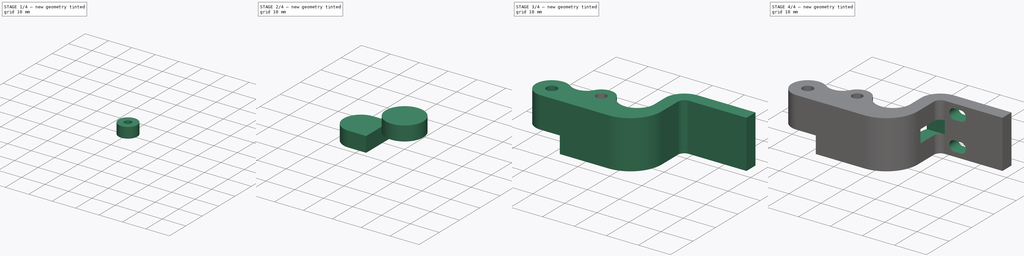
[diagram: build sequence overview — one tinted view per stage of 4, left to right]
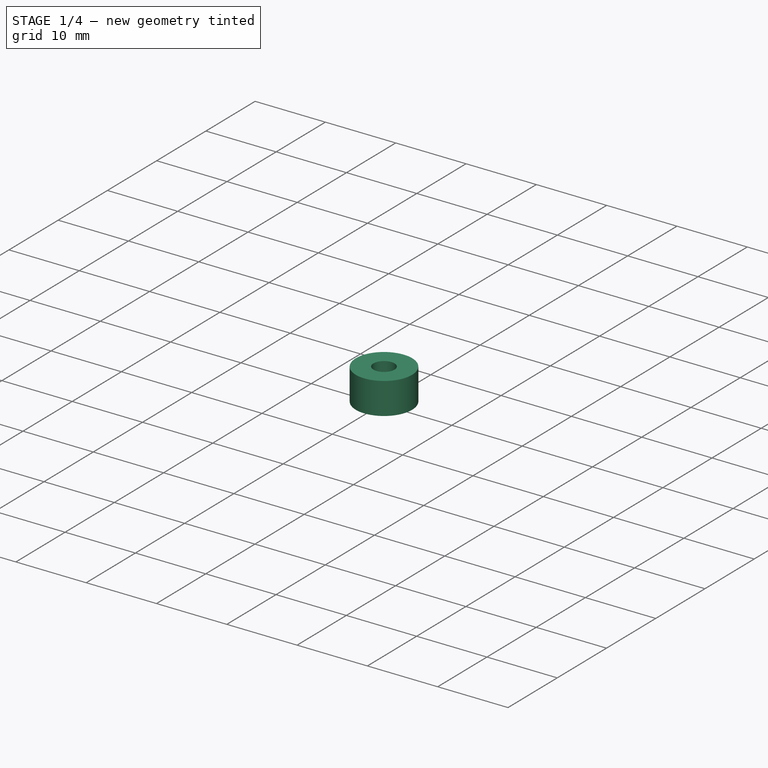
[diagram: stage 1 of 4 — iso view after this stage's code; geometry added in this stage tinted green]
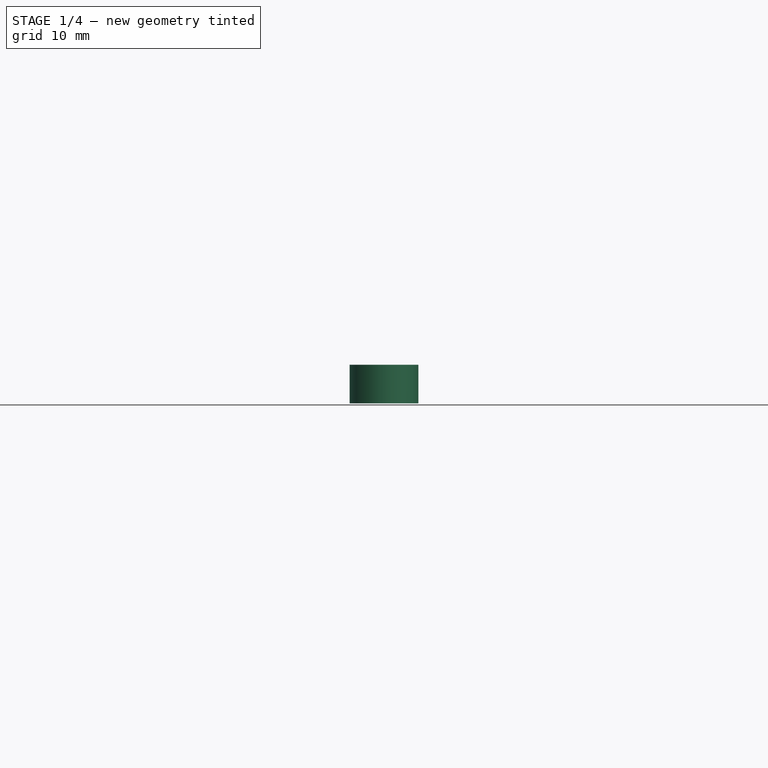
[diagram: stage 1 of 4 — front view after this stage's code; geometry added in this stage tinted green]
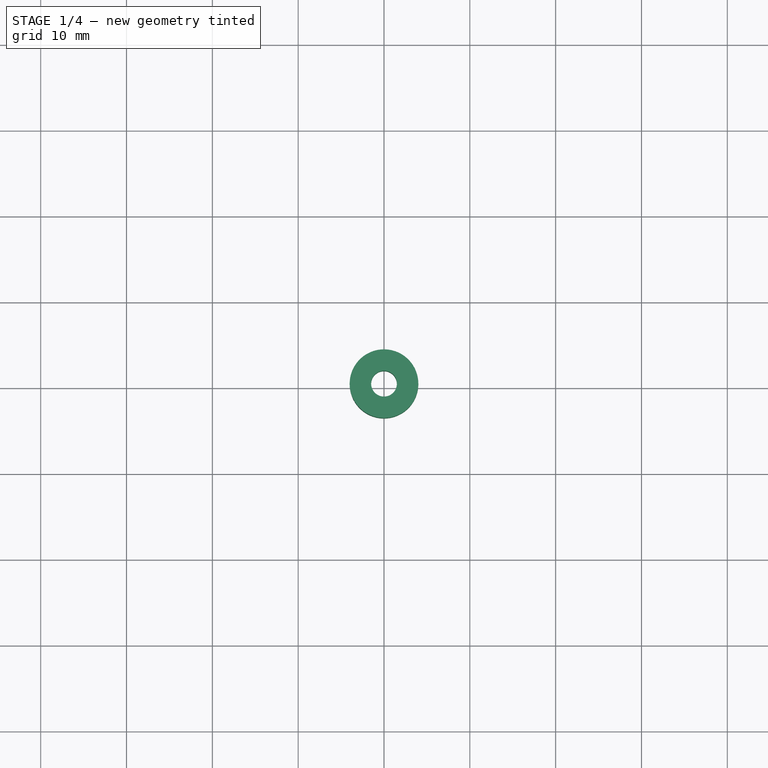
[diagram: stage 1 of 4 — top view after this stage's code; geometry added in this stage tinted green]
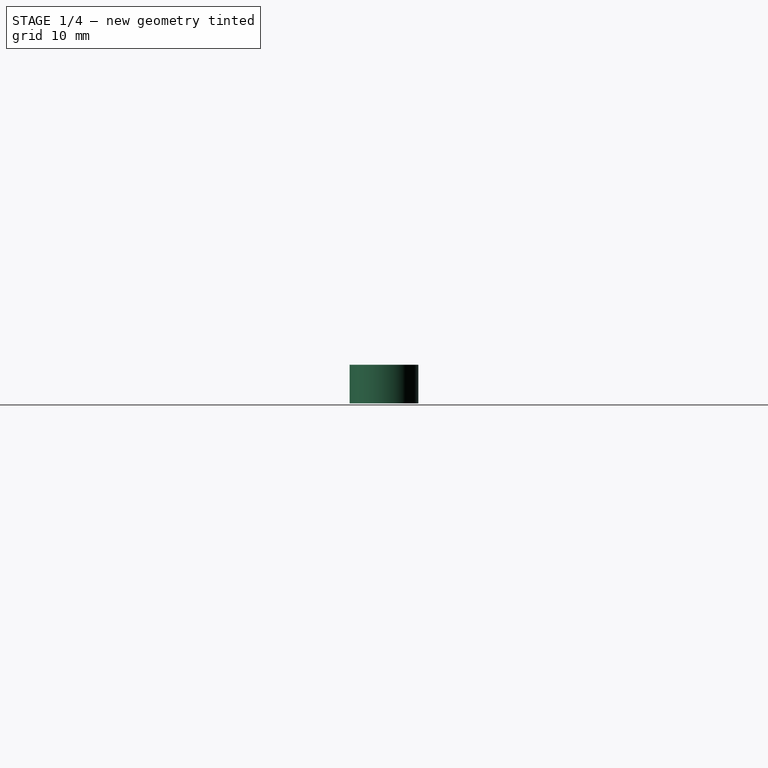
[diagram: stage 1 of 4 — right view after this stage's code; geometry added in this stage tinted green]
FCSTD DOCUMENT  (FreeCAD 0.16R6707 (Git))
Label: palancaV2
License: CreativeCommons Attribution-NonCommercial
LicenseURL: http://creativecommons.org/licenses/by-nc/4.0/
objects: Sketcher::SketchObject×4, Part::Cut×3, Part::Cylinder×3, PartDesign::Pad×2, PartDesign::Pocket×2, PartDesign::Chamfer×1
note: 19 computed .brp shape members not serialized (recipe doc carries the construction recipe); baked Part::Feature solids carry a one-line shape summary decoded from their .brp

FEATURE [Part::Cylinder] Cylinder001  label="Cilindro"
  Angle = 360
  Height = 4.5
  Placement = pos=(0,-9.5,5.25) rot=(0,0,1;0rad)
  Radius = 1.5
FEATURE [Part::Cylinder] Cylinder002  label="Cilindro001"
  Angle = 360
  Height = 4.5
  Placement = pos=(0,-9.5,5.25) rot=(0,0,1;0rad)
  Radius = 4
FEATURE [Part::Cut] Cut002
  Base = -> Cylinder002
  Tool = -> Cylinder001
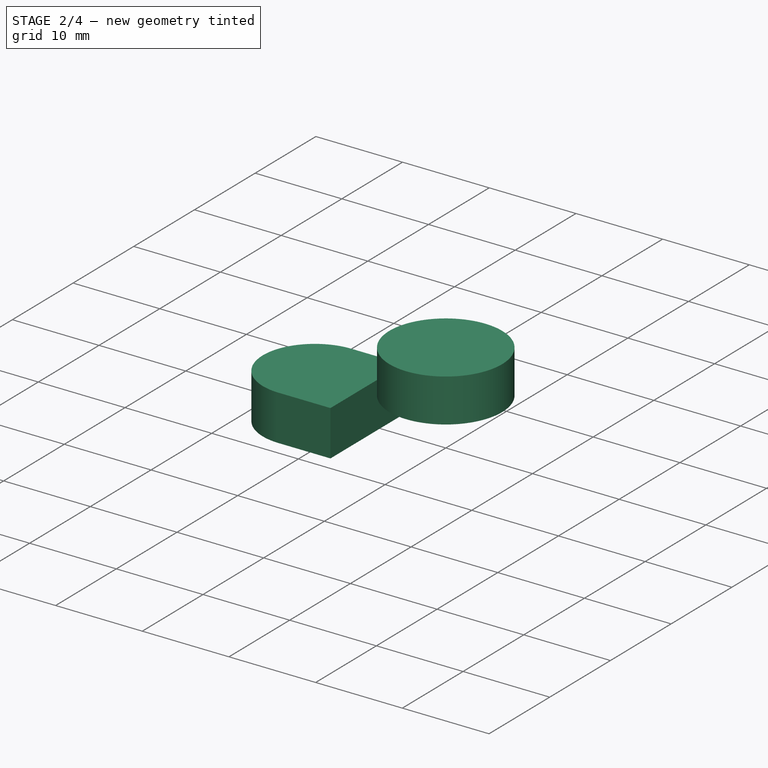
[diagram: stage 2 of 4 — iso view after this stage's code; geometry added in this stage tinted green]
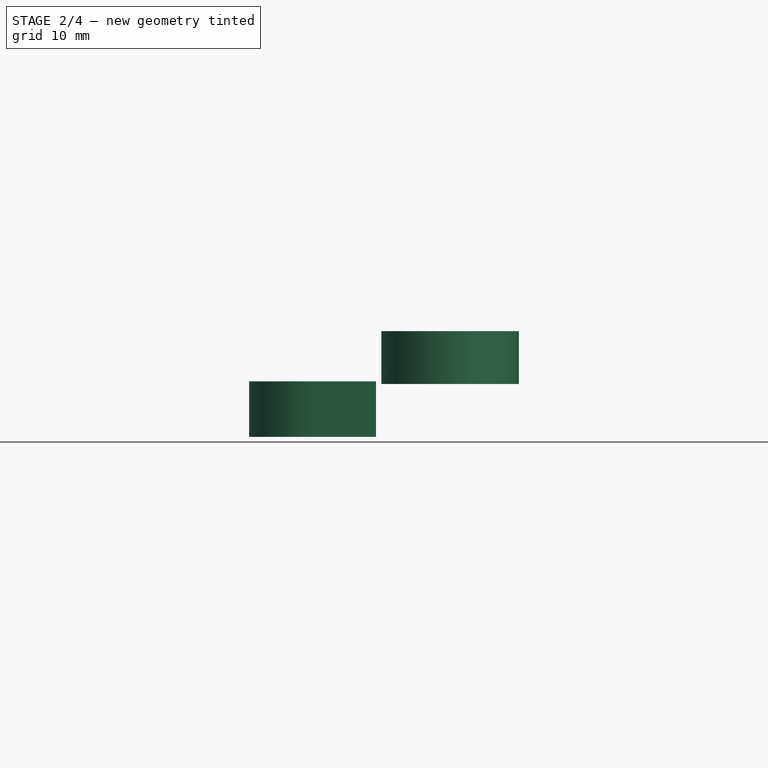
[diagram: stage 2 of 4 — front view after this stage's code; geometry added in this stage tinted green]
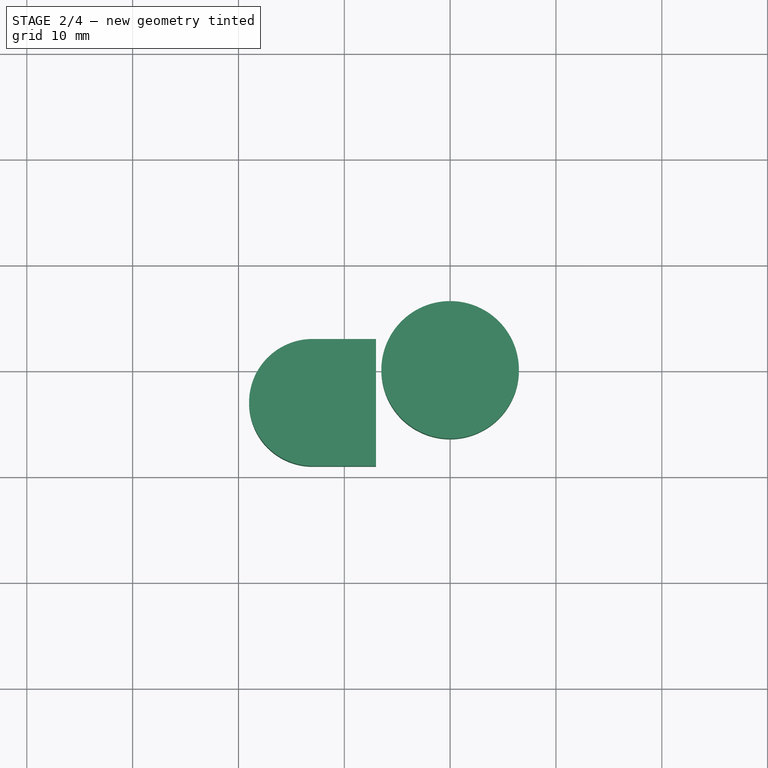
[diagram: stage 2 of 4 — top view after this stage's code; geometry added in this stage tinted green]
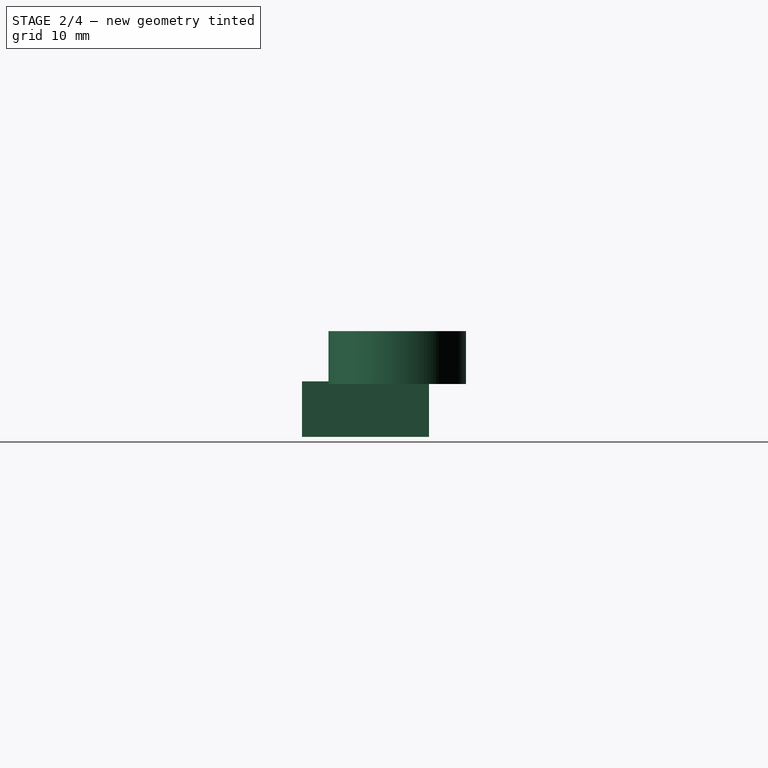
[diagram: stage 2 of 4 — right view after this stage's code; geometry added in this stage tinted green]
FEATURE [Sketcher::SketchObject] Sketch001
  sketch-geometry (4):
    g0: ArcOfCircle CenterX=-13 CenterY=-13 CenterZ=0 NormalX=0 NormalY=0 NormalZ=1 Radius=6 StartAngle=1.5708 EndAngle=4.71239
    g1: LineSegment StartX=-13 StartY=-7 StartZ=0 EndX=-7 EndY=-7 EndZ=0
    g2: LineSegment StartX=-7 StartY=-7 StartZ=0 EndX=-7 EndY=-19 EndZ=0
    g3: LineSegment StartX=-7 StartY=-19 StartZ=0 EndX=-13 EndY=-19 EndZ=0
  constraints (12):
    c: Tangent(g0,g1) = 1.5708
    c: Coincident(g1,g2)
    c: Coincident(g2,g3)
    c: Coincident(g3,g0)
    c: Tangent(g3,g0)
    c: Vertical(g2)
    c: Horizontal(g1)
    c: Horizontal(g3)
    c: Radius(g0) = 6
    c: DistanceX(g1) = 6
    c: DistanceX(g-1,g0) = -13
    c: DistanceY(g-1,g0) = -13
FEATURE [PartDesign::Pad] Pad001  label="bisagra"
  Length = 5.25
  Length2 = 100
  Sketch = -> Sketch001
  Type = 0
FEATURE [Part::Cylinder] Cylinder  label="rodamiento"
  Angle = 360
  Height = 5
  Placement = pos=(0,-10,5) rot=(0,0,1;0rad)
  Radius = 6.5
FEATURE [PartDesign::Chamfer] Chamfer
  Base = -> Cut002 [Edge1,Edge4]
  Size = 0.8
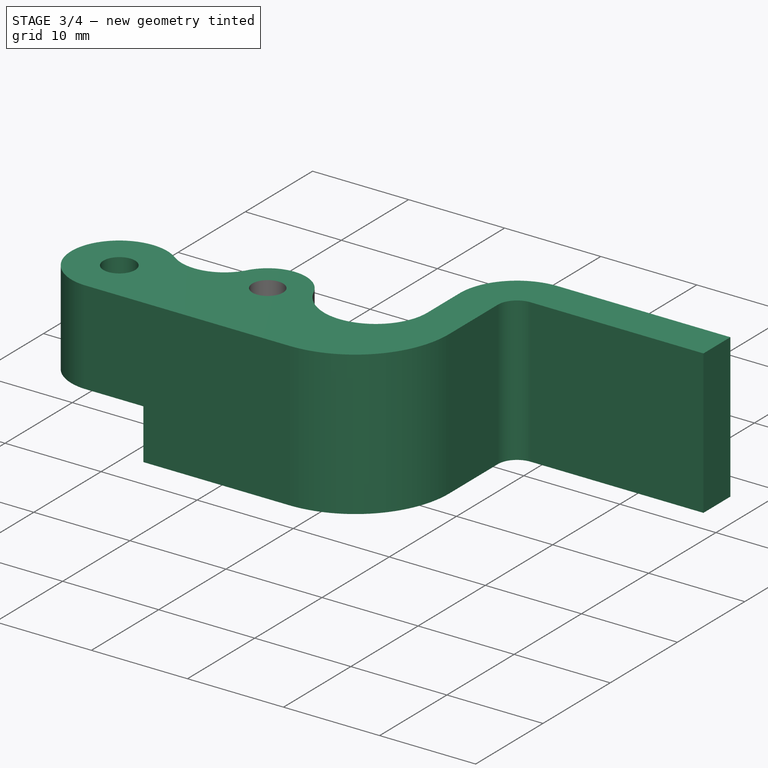
[diagram: stage 3 of 4 — iso view after this stage's code; geometry added in this stage tinted green]
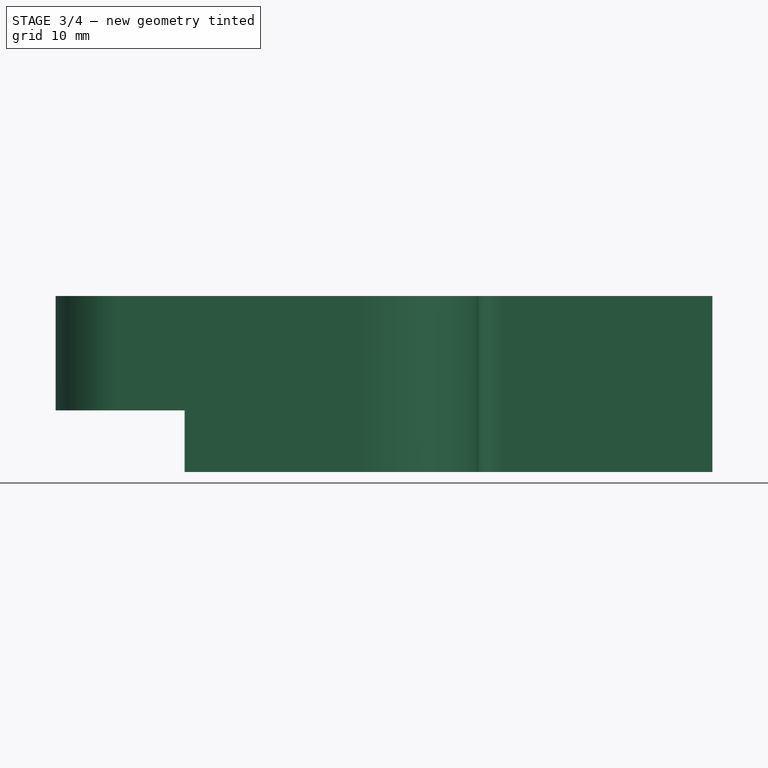
[diagram: stage 3 of 4 — front view after this stage's code; geometry added in this stage tinted green]
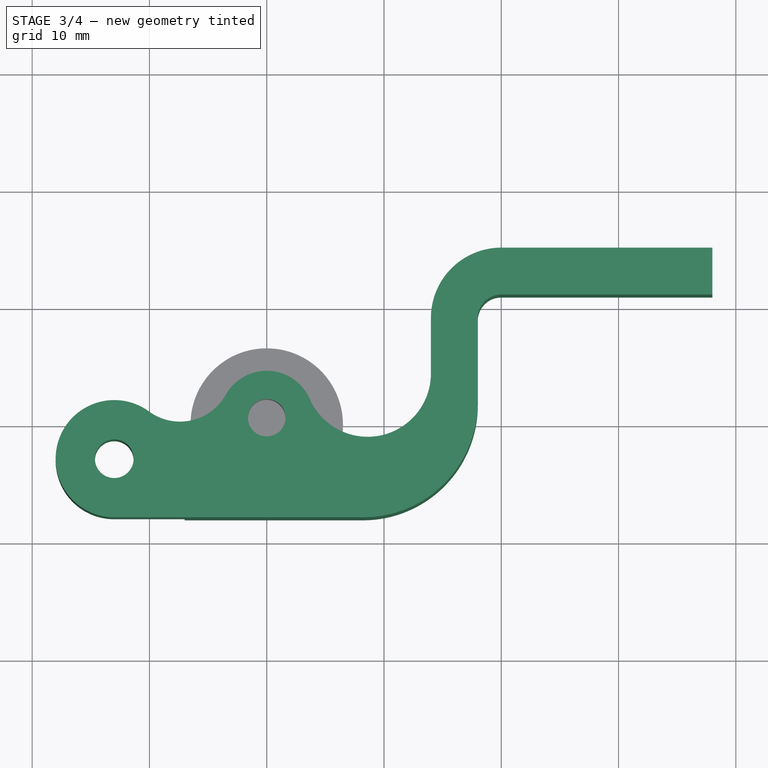
[diagram: stage 3 of 4 — top view after this stage's code; geometry added in this stage tinted green]
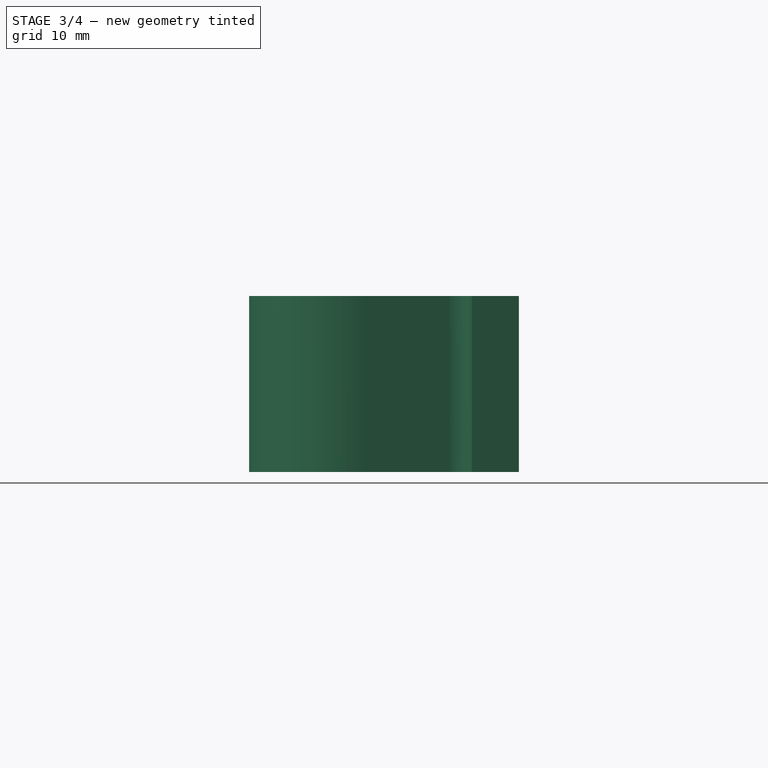
[diagram: stage 3 of 4 — right view after this stage's code; geometry added in this stage tinted green]
FEATURE [Sketcher::SketchObject] Sketch
  sketch-geometry (15):
    g0: Circle CenterX=0 CenterY=-9.5 CenterZ=0 NormalX=0 NormalY=0 NormalZ=1 Radius=1.6
    g1: Circle CenterX=-13 CenterY=-13 CenterZ=0 NormalX=0 NormalY=0 NormalZ=1 Radius=1.65
    g2: ArcOfCircle CenterX=-13 CenterY=-13 CenterZ=0 NormalX=0 NormalY=0 NormalZ=1 Radius=5 StartAngle=0.937369 EndAngle=4.71239
    g3: ArcOfCircle CenterX=0 CenterY=-9.5 CenterZ=0 NormalX=0 NormalY=0 NormalZ=1 Radius=4 StartAngle=0.412121 EndAngle=2.63182
    g4: LineSegment StartX=-13 StartY=-18 StartZ=0 EndX=8.20272 EndY=-18 EndZ=0
    g5: ArcOfCircle CenterX=-7.39399 CenterY=-5.36631 CenterZ=0 NormalX=0 NormalY=0 NormalZ=1 Radius=4.47104 StartAngle=4.07896 EndAngle=5.77341
    g6: ArcOfCircle CenterX=8.20272 CenterY=-8.20272 CenterZ=0 NormalX=0 NormalY=0 NormalZ=1 Radius=9.79728 StartAngle=4.71239 EndAngle=6.28319
    g7: LineSegment StartX=18 StartY=-8.20272 StartZ=0 EndX=18 EndY=-1 EndZ=0
    g8: LineSegment StartX=20 StartY=1 StartZ=0 EndX=38 EndY=1 EndZ=0
    g9: LineSegment StartX=38 StartY=1 StartZ=0 EndX=38 EndY=5 EndZ=0
    g10: LineSegment StartX=38 StartY=5 StartZ=0 EndX=20 EndY=5 EndZ=0
    g11: ArcOfCircle CenterX=20 CenterY=-1 CenterZ=0 NormalX=0 NormalY=0 NormalZ=1 Radius=2 StartAngle=1.5708 EndAngle=3.14159
    g12: ArcOfCircle CenterX=20 CenterY=-1 CenterZ=0 NormalX=0 NormalY=0 NormalZ=1 Radius=6 StartAngle=1.57079 EndAngle=3.14159
    g13: LineSegment StartX=14 StartY=-1 StartZ=0 EndX=14 EndY=-5.7375 EndZ=0
    g14: ArcOfCircle CenterX=8.60677 CenterY=-5.7375 CenterZ=0 NormalX=0 NormalY=0 NormalZ=1 Radius=5.39323 StartAngle=3.55372 EndAngle=6.28319
  constraints (44):
    c: PointOnObject(g0,g-2)
    c: DistanceX(g-1,g1) = -13
    c: DistanceY(g-1,g1) = -13
    c: Radius(g1) = 1.65
    c: Radius(g0) = 1.6
    c: Coincident(g2,g1)
    c: Coincident(g3,g0)
    c: Coincident(g4,g2)
    c: Horizontal(g4)
    c: Tangent(g2,g4)
    c: Radius(g2) = 5
    c: Radius(g3) = 4
    c: Coincident(g5,g2)
    c: Coincident(g5,g3)
    c: Tangent(g5,g3)
    c: Tangent(g5,g2)
    c: Coincident(g6,g4)
    c: Tangent(g6,g4)
    c: Coincident(g7,g6)
    c: Vertical(g7)
    c: Coincident(g8,g9)
    c: Coincident(g9,g10)
    c: Horizontal(g8)
    c: Horizontal(g10)
    c: Vertical(g9)
    c: Tangent(g7,g11) = 1.5708
    c: Tangent(g8,g11) = 1.5708
    c: Radius(g11) = 2
    c: DistanceY(g9) = 4
    c: Coincident(g12,g11)
    c: Coincident(g12,g10)
    c: Tangent(g10,g12)
    c: DistanceX(g-1,g9) = 38
    c: DistanceX(g8) = 18
    c: Coincident(g13,g12)
    c: Vertical(g13)
    c: Tangent(g13,g12)
    c: DistanceY(g-1,g10) = 5
    c: Coincident(g14,g13)
    c: Tangent(g14,g13)
    c: Coincident(g14,g3)
    c: Tangent(g14,g3)
    c: Tangent(g6,g7)
    c: DistanceY(g-1,g0) = -9.5
FEATURE [PartDesign::Pad] Pad  label="cuerpo"
  Length = 15
  Length2 = 100
  Sketch = -> Sketch
  Type = 0
FEATURE [Part::Cut] Cut
  Base = -> Pad
  Tool = -> Pad001
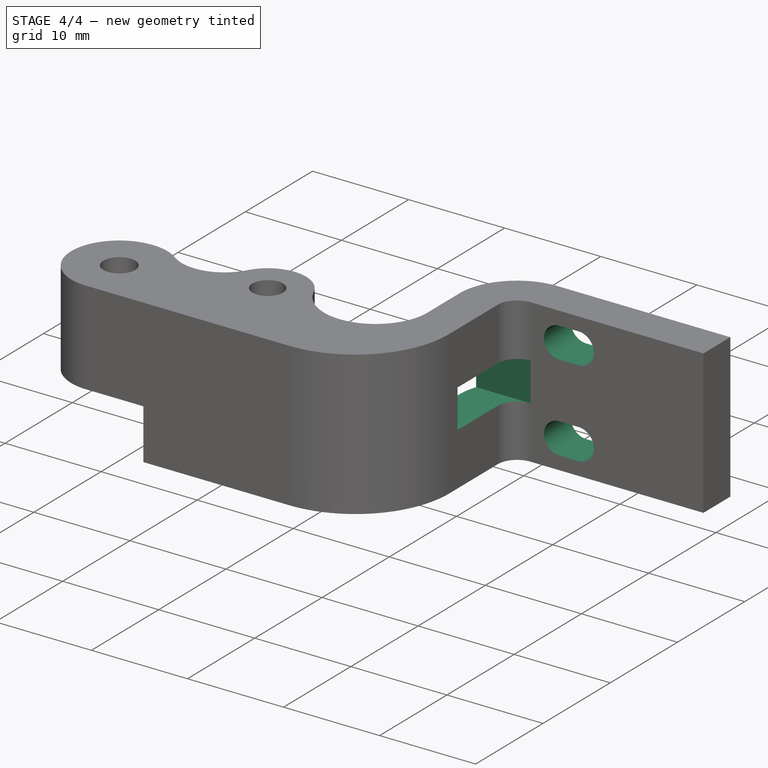
[diagram: stage 4 of 4 — iso view after this stage's code; geometry added in this stage tinted green]
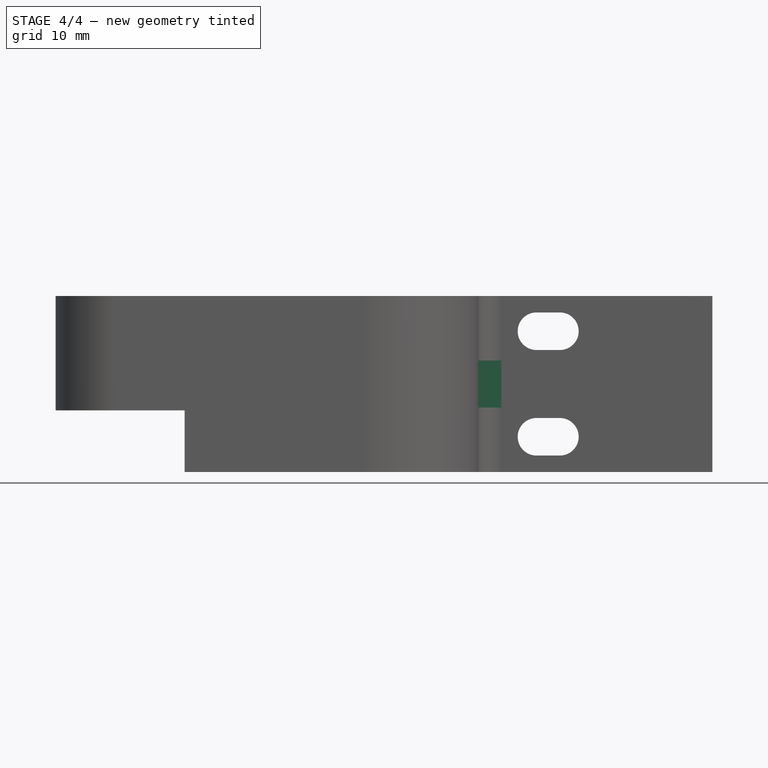
[diagram: stage 4 of 4 — front view after this stage's code; geometry added in this stage tinted green]
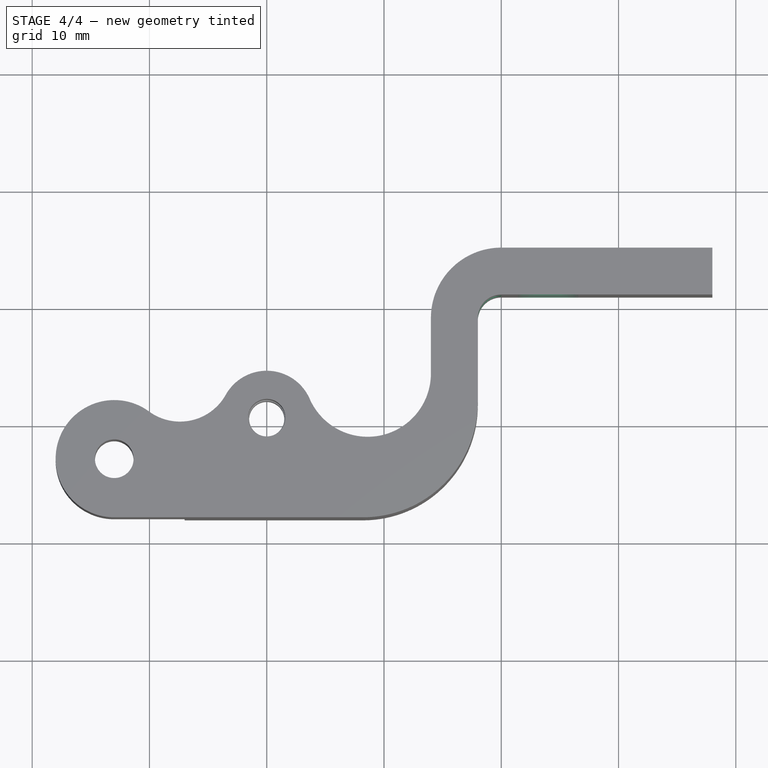
[diagram: stage 4 of 4 — top view after this stage's code; geometry added in this stage tinted green]
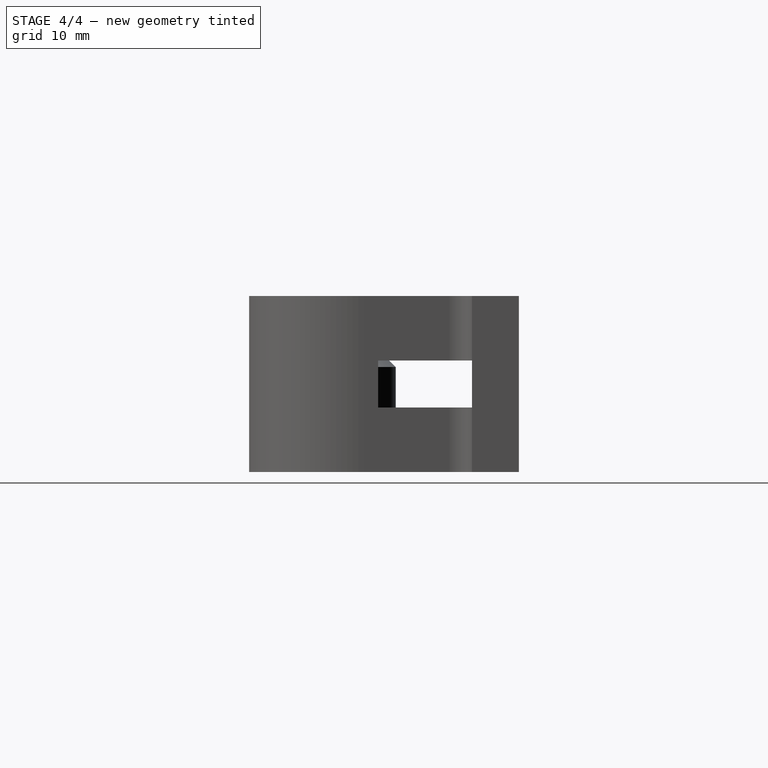
[diagram: stage 4 of 4 — right view after this stage's code; geometry added in this stage tinted green]
FEATURE [Part::Cut] Cut001
  Base = -> Cut
  Tool = -> Cylinder
FEATURE [Sketcher::SketchObject] Sketch002
  Placement = pos=(0,5,0) rot=(0,0.707107,0.707107;3.14159rad)
  Support = -> Cut001 [Face13]
  sketch-geometry (8):
    g0: ArcOfCircle CenterX=-25 CenterY=12 CenterZ=0 NormalX=0 NormalY=0 NormalZ=1 Radius=1.6 StartAngle=1.5708 EndAngle=4.71239
    g1: ArcOfCircle CenterX=-23 CenterY=12 CenterZ=0 NormalX=0 NormalY=0 NormalZ=1 Radius=1.6 StartAngle=4.71239 EndAngle=7.85398
    g2: LineSegment StartX=-25 StartY=10.4 StartZ=0 EndX=-23 EndY=10.4 EndZ=0
    g3: LineSegment StartX=-25 StartY=13.6 StartZ=0 EndX=-23 EndY=13.6 EndZ=0
    g4: ArcOfCircle CenterX=-25 CenterY=3 CenterZ=0 NormalX=0 NormalY=0 NormalZ=1 Radius=1.6 StartAngle=1.5708 EndAngle=4.71239
    g5: ArcOfCircle CenterX=-23 CenterY=3 CenterZ=0 NormalX=0 NormalY=0 NormalZ=1 Radius=1.6 StartAngle=4.71239 EndAngle=7.85398
    g6: LineSegment StartX=-25 StartY=1.4 StartZ=0 EndX=-23 EndY=1.4 EndZ=0
    g7: LineSegment StartX=-25 StartY=4.6 StartZ=0 EndX=-23 EndY=4.6 EndZ=0
  constraints (20):
    c: Tangent(g0,g3) = 1.5708
    c: Tangent(g0,g2) = -1.5708
    c: Tangent(g2,g1) = -1.5708
    c: Tangent(g3,g1) = 1.5708
    c: Horizontal(g2)
    c: Equal(g0,g1)
    c: Tangent(g4,g7) = 1.5708
    c: Tangent(g4,g6) = -1.5708
    c: Tangent(g6,g5) = -1.5708
    c: Tangent(g7,g5) = 1.5708
    c: Horizontal(g6)
    c: Equal(g4,g5)
    c: Equal(g7,g3)
    c: Equal(g4,g0)
    c: DistanceX(g3) = 2
    c: Radius(g0) = 1.6
    c: DistanceY(g4,g0) = 9
    c: DistanceY(g-1,g4) = 3
    c: DistanceX(g-1,g4) = -25
    c: DistanceX(g-1,g0) = -25
FEATURE [PartDesign::Pocket] Pocket
  Length = 5
  Sketch = -> Sketch002
  Type = 0
FEATURE [Sketcher::SketchObject] Sketch003
  Placement = pos=(18,0,0) rot=(0.57735,0.57735,0.57735;2.0944rad)
  Support = -> Pocket [Face9]
  sketch-geometry (4):
    g0: LineSegment StartX=-7 StartY=9.5 StartZ=0 EndX=1 EndY=9.5 EndZ=0
    g1: LineSegment StartX=1 StartY=9.5 StartZ=0 EndX=1 EndY=5.5 EndZ=0
    g2: LineSegment StartX=1 StartY=5.5 StartZ=0 EndX=-7 EndY=5.5 EndZ=0
    g3: LineSegment StartX=-7 StartY=5.5 StartZ=0 EndX=-7 EndY=9.5 EndZ=0
  constraints (12):
    c: Coincident(g0,g1)
    c: Coincident(g1,g2)
    c: Coincident(g2,g3)
    c: Coincident(g3,g0)
    c: Horizontal(g0)
    c: Horizontal(g2)
    c: Vertical(g1)
    c: Vertical(g3)
    c: DistanceY(g3) = 4
    c: DistanceY(g-1,g2) = 5.5
    c: DistanceX(g-1,g2) = -7
    c: DistanceX(g2) = -8
FEATURE [PartDesign::Pocket] Pocket001
  Length = 5
  Midplane = true
  Sketch = -> Sketch003
  Type = 1
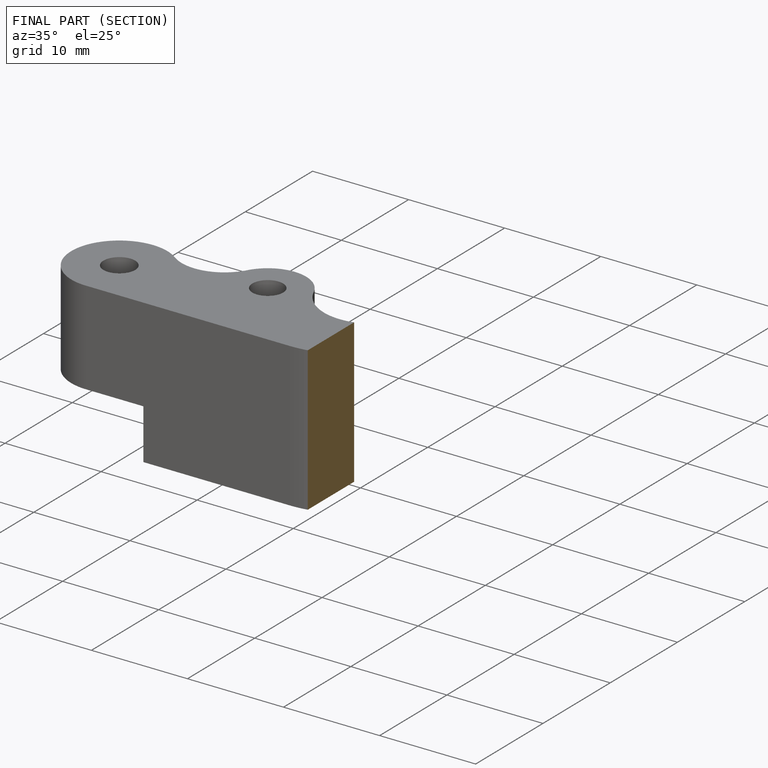
[diagram: finished part — half-section view (interior)]
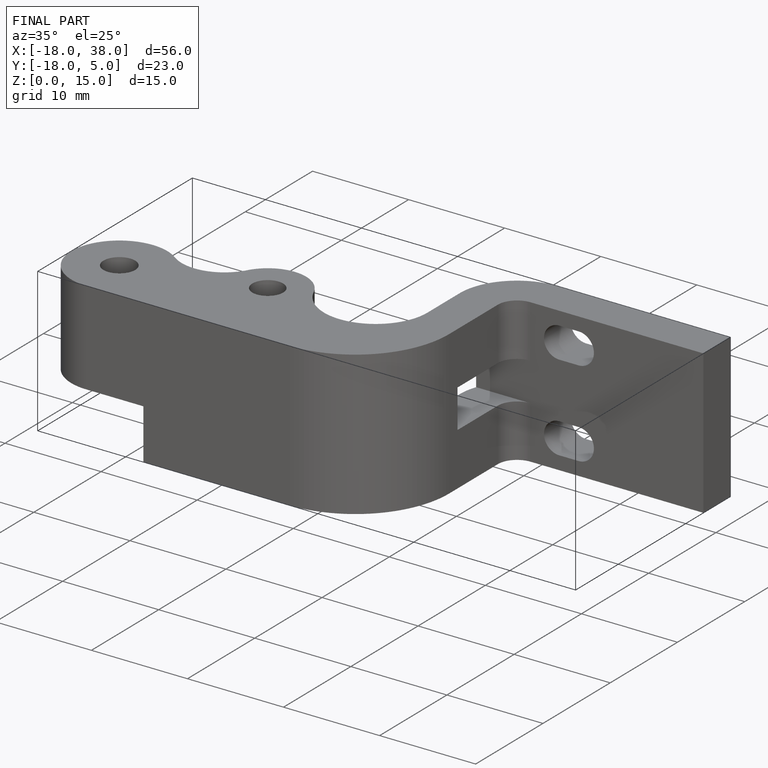
[diagram: finished part — iso view with bounding-box wireframe]
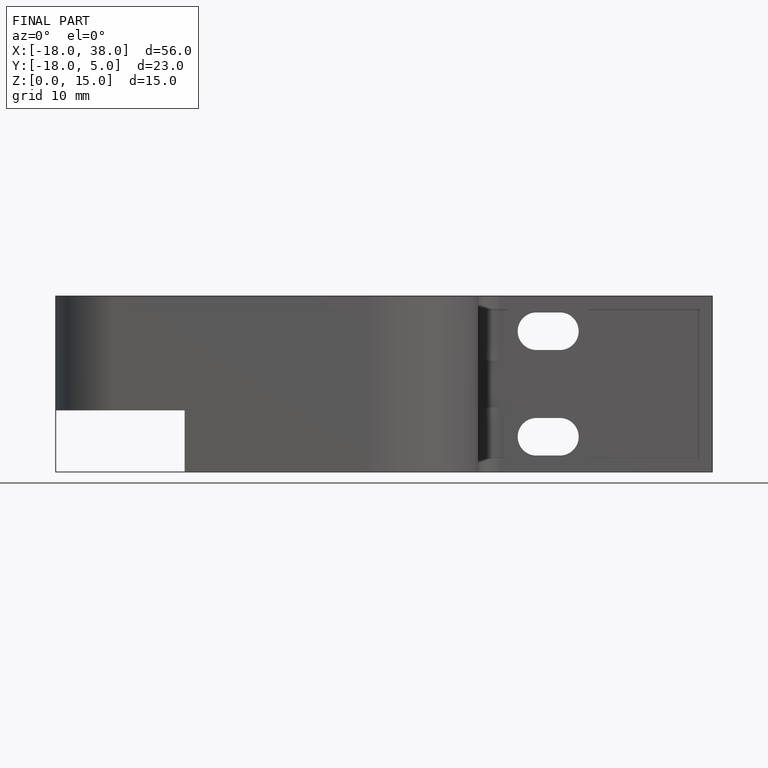
[diagram: finished part — front view with bounding-box wireframe]
